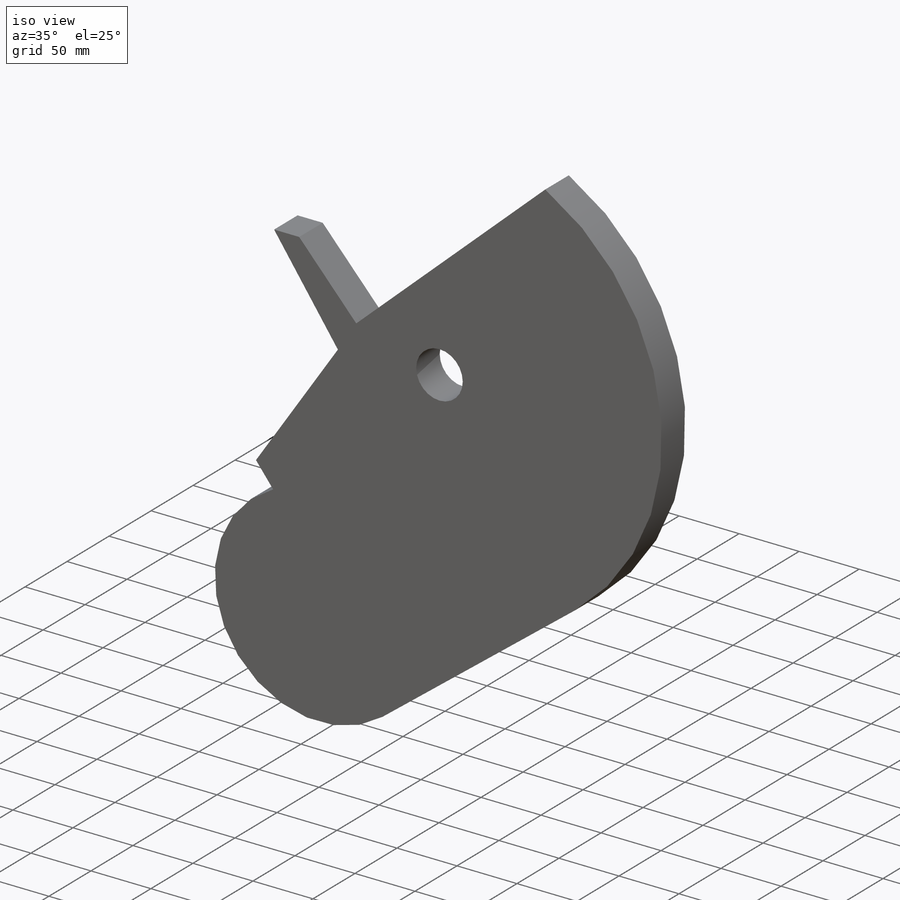
[diagram: iso view]
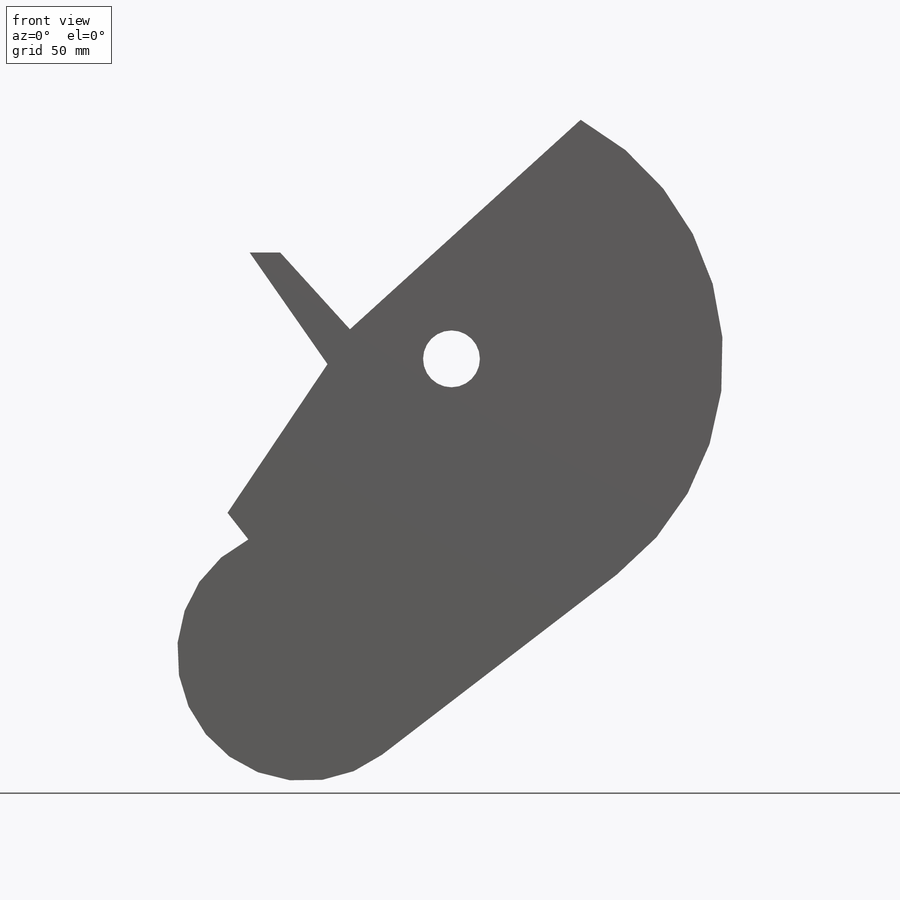
[diagram: front view]
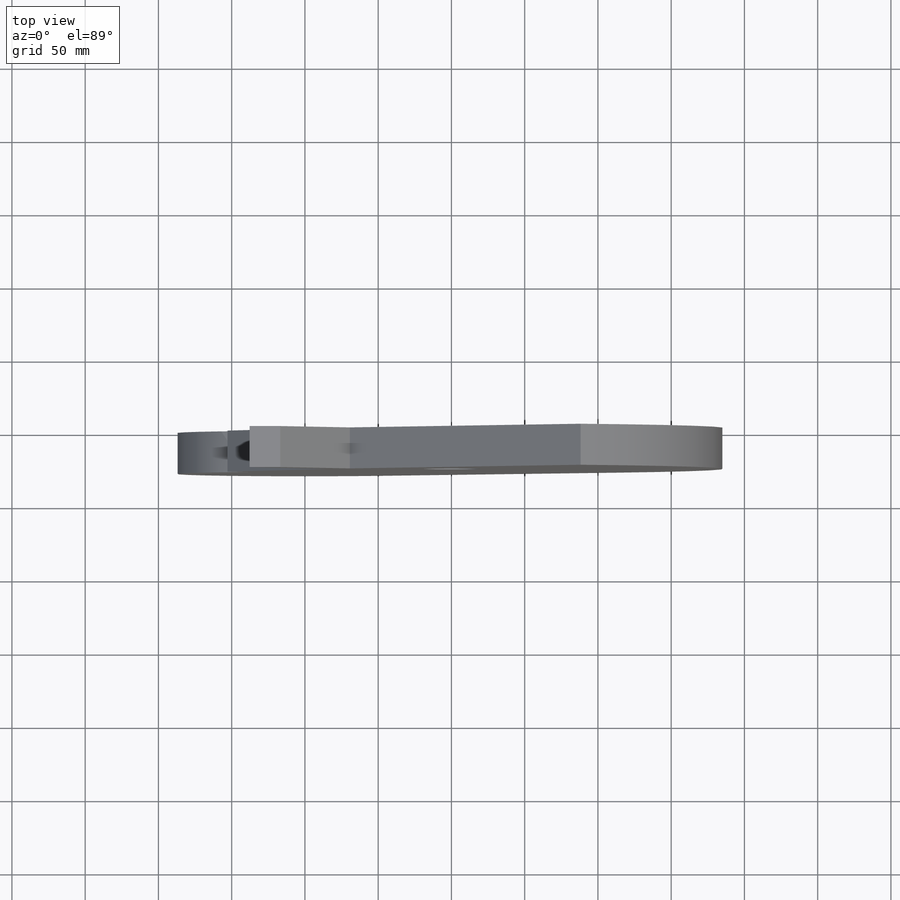
[diagram: top view]
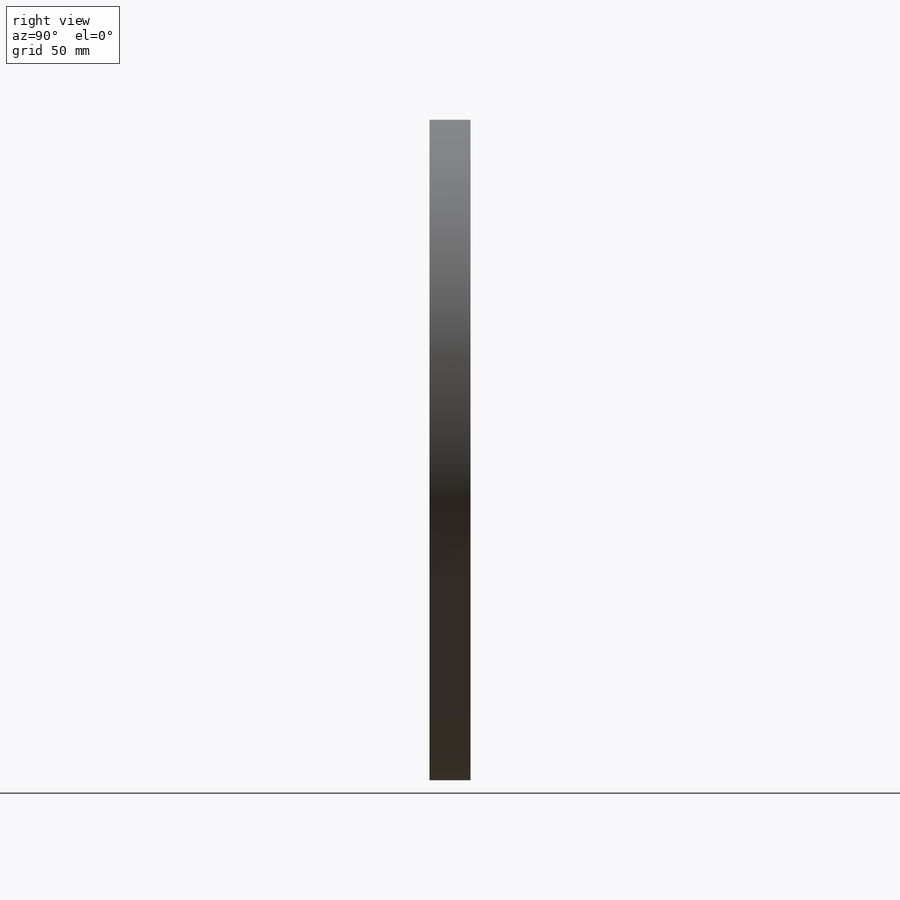
[diagram: right view]
SOLIDWORKS PART (.sldprt)
format: sldprt  version: not decoded by parser v0  size: 254,464 bytes
history: native  units: mm
features: sketch x3, cut_extrude x2, material x1, extrude x1 (+13 scaffold rows collapsed)
feature tree (20):
  scaffold x13  (default folders/planes/origin — collapsed)
  material  "Material <not specified>"
  sketch  "Sketch1"  dims[c1.D1=38.8mm c2.D1=5.0mm c2.D2=6.0mm c2.D3=24.0mm c2.D4=1.5mm c3.D1=~49.645897mm]
  extrude  "Boss-Extrude1"  Depth=12mm
  sketch  "Sketch3"  dims[D1=2.0mm D2=2.0mm]
  cut_extrude  "Cut-Extrude2"  Depth=5mm
  sketch  "Sketch2"
  cut_extrude  "Cut-Extrude1"  Depth=5mm
decode coverage: 5 of 6 modeling features carry decoded parameters
note: ~ marks probable driven/reference dimensions
note: suppression state not decoded; provenance and decode notes live in map.json
